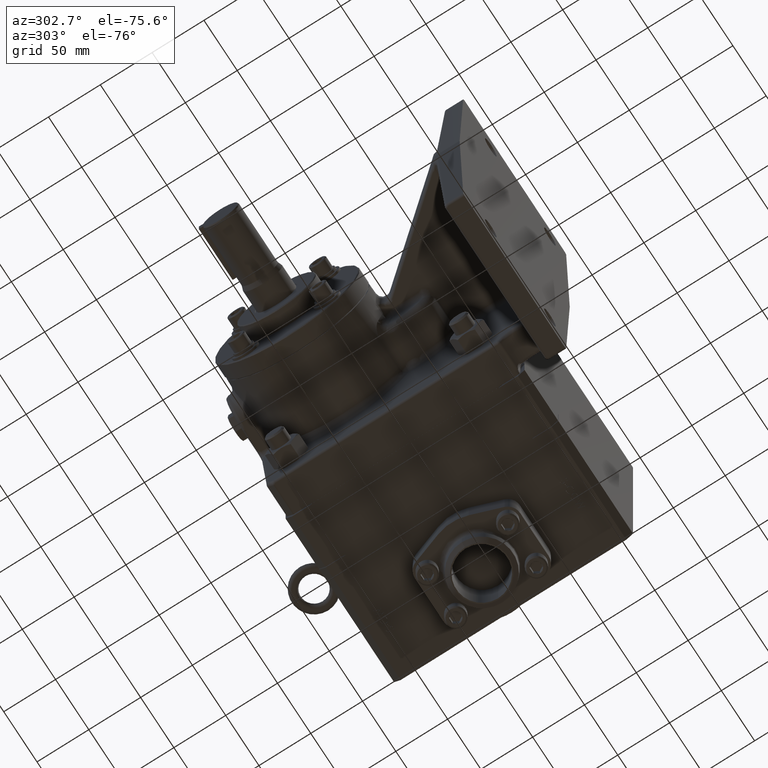
[diagram: clean part render]
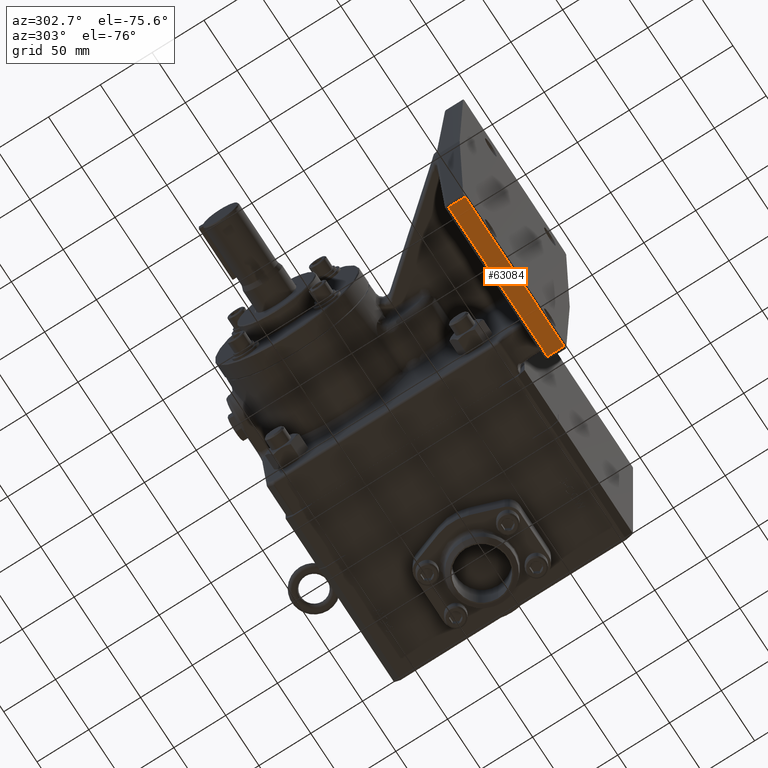
[diagram: same view with one face highlighted and labeled with its STEP entity id]
A machine part, auxiliary view. The second image highlights one B-rep face of the part: STEP entity #63084.
In plain terms, the highlighted planar face has unit normal (0, 0, -1).
Its self-contained STEP definition (entity closure, byte-faithful):
#359 = ORIENTED_EDGE ( 'NONE', *, *, #49703, .F. ) ;
#2605 = AXIS2_PLACEMENT_3D ( 'NONE', #78613, #86389, #40662 ) ;
#3773 = ORIENTED_EDGE ( 'NONE', *, *, #79611, .T. ) ;
#3967 = VECTOR ( 'NONE', #89806, 39.37007874015748100 ) ;
#4501 = CARTESIAN_POINT ( 'NONE',  ( -8.118642960852330500, -7.750000000000000000, -6.125000000000000000 ) ) ;
#4549 = LINE ( 'NONE', #14019, #52912 ) ;
#8460 = DIRECTION ( 'NONE',  ( -1.000000000000000000, -0.0000000000000000000, -0.0000000000000000000 ) ) ;
#13076 = EDGE_LOOP ( 'NONE', ( #3773, #54043, #47736, #359 ) ) ;
#14019 = CARTESIAN_POINT ( 'NONE',  ( -6.224117347023150300, -7.919999999999999900, -6.125000000000000000 ) ) ;
#17075 = DIRECTION ( 'NONE',  ( -0.0000000000000000000, 1.000000000000000000, -0.0000000000000000000 ) ) ;
#23374 = CARTESIAN_POINT ( 'NONE',  ( -6.339999999999999900, -7.115882652976848600, -6.125000000000000000 ) ) ;
#36762 = VERTEX_POINT ( 'NONE', #38875 ) ;
#37715 = LINE ( 'NONE', #48526, #54570 ) ;
#38875 = CARTESIAN_POINT ( 'NONE',  ( -6.224117347023150300, -7.115882652976848600, -6.125000000000000000 ) ) ;
#40662 = DIRECTION ( 'NONE',  ( 1.000000000000000000, 0.0000000000000000000, 0.0000000000000000000 ) ) ;
#42058 = VECTOR ( 'NONE', #8460, 39.37007874015748100 ) ;
#43330 = FACE_OUTER_BOUND ( 'NONE', #13076, .T. ) ;
#43753 = EDGE_CURVE ( 'Defeatured_0_1205+Defeatured_0_1206+Defeatured_0_1274+Defeatured_0_845', #36762, #97066, #4549, .T. ) ;
#47736 = ORIENTED_EDGE ( 'NONE', *, *, #82046, .F. ) ;
#48526 = CARTESIAN_POINT ( 'NONE',  ( -0.3658826529768486900, -7.919999999999999900, -6.125000000000000000 ) ) ;
#49703 = EDGE_CURVE ( 'Defeatured_0_849+Defeatured_0_1206+Defeatured_0_845+Defeatured_0_1208', #64386, #60346, #37715, .T. ) ;
#52912 = VECTOR ( 'NONE', #67935, 39.37007874015748100 ) ;
#54043 = ORIENTED_EDGE ( 'NONE', *, *, #43753, .F. ) ;
#54570 = VECTOR ( 'NONE', #17075, 39.37007874015748100 ) ;
#56114 = PLANE ( 'NONE',  #2605 ) ;
#60346 = VERTEX_POINT ( 'NONE', #95393 ) ;
#63084 = ADVANCED_FACE ( 'Defeatured_0_1206', ( #43330 ), #56114, .T. ) ;
#64386 = VERTEX_POINT ( 'NONE', #69361 ) ;
#66350 = CARTESIAN_POINT ( 'NONE',  ( -6.224117347023150300, -7.750000000000000000, -6.125000000000000000 ) ) ;
#67935 = DIRECTION ( 'NONE',  ( 0.0000000000000000000, -1.000000000000000000, 0.0000000000000000000 ) ) ;
#69361 = CARTESIAN_POINT ( 'NONE',  ( -0.3658826529768486900, -7.750000000000000000, -6.125000000000000000 ) ) ;
#78613 = CARTESIAN_POINT ( 'NONE',  ( -6.339999999999999900, -7.919999999999999900, -6.125000000000000000 ) ) ;
#79611 = EDGE_CURVE ( 'Defeatured_0_1206+Defeatured_0_845+Defeatured_0_849+Defeatured_0_1205', #64386, #97066, #93291, .T. ) ;
#80508 = LINE ( 'NONE', #23374, #42058 ) ;
#82046 = EDGE_CURVE ( 'Defeatured_0_1218+Defeatured_0_1206+Defeatured_0_1208+Defeatured_0_1274', #60346, #36762, #80508, .T. ) ;
#86389 = DIRECTION ( 'NONE',  ( 0.0000000000000000000, 0.0000000000000000000, -1.000000000000000000 ) ) ;
#89806 = DIRECTION ( 'NONE',  ( -1.000000000000000000, -0.0000000000000000000, -0.0000000000000000000 ) ) ;
#93291 = LINE ( 'NONE', #4501, #3967 ) ;
#95393 = CARTESIAN_POINT ( 'NONE',  ( -0.3658826529768486900, -7.115882652976848600, -6.125000000000000000 ) ) ;
#97066 = VERTEX_POINT ( 'NONE', #66350 ) ;